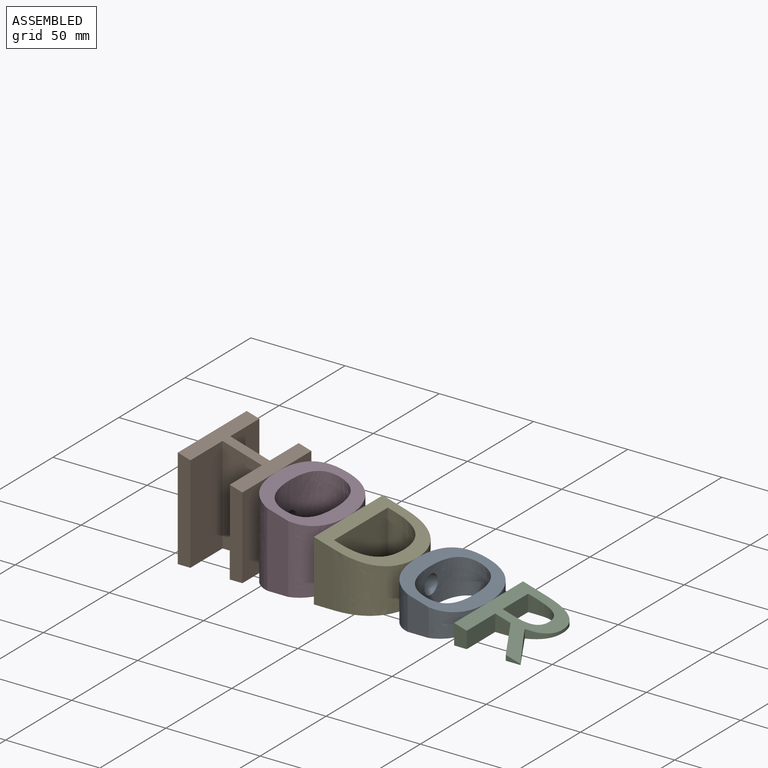
[diagram: assembled view]
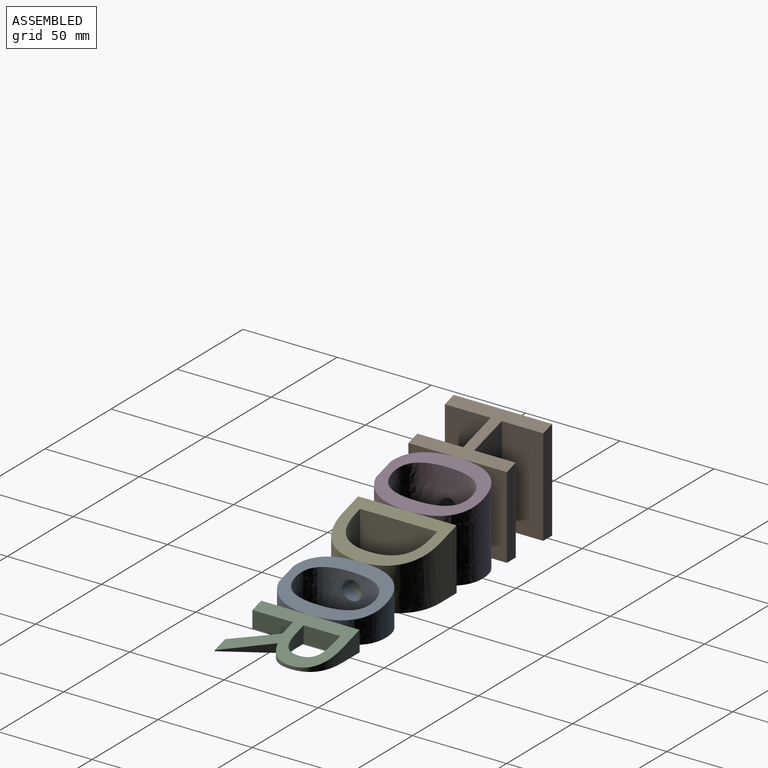
[diagram: assembled view, second angle]
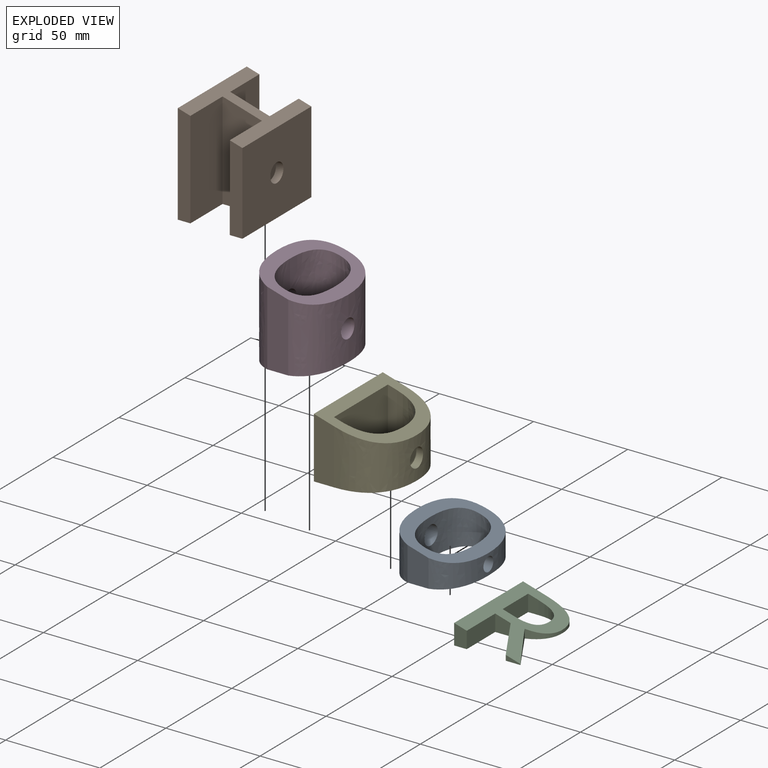
[diagram: exploded view]
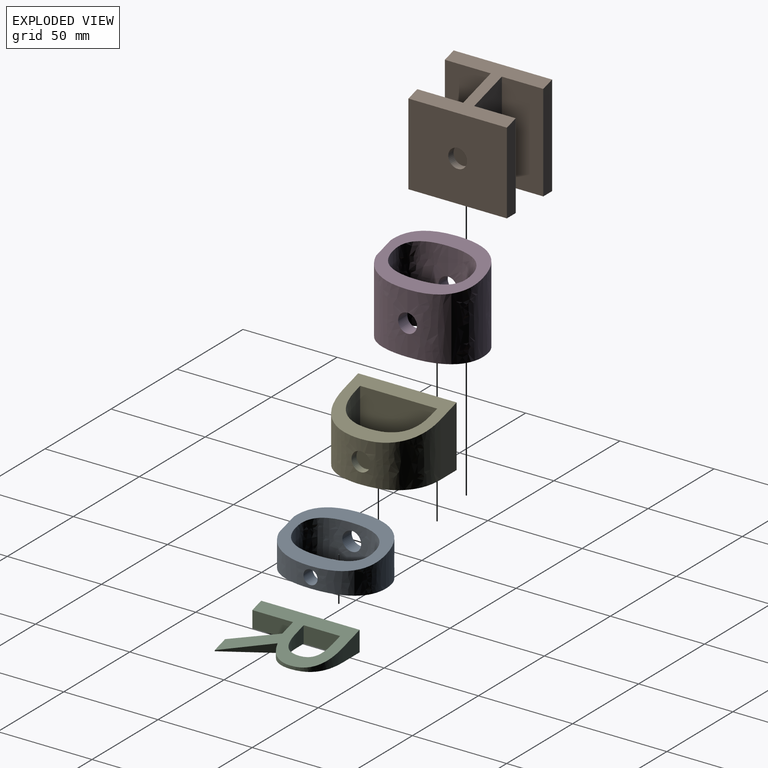
[diagram: exploded view, second angle]
ASSEMBLY  parts=5 mates=4
PART A: 18 faces, bbox 38x53.8x21.9 mm
  f0: extruded ~19.91x12.23mm, area 211.4mm2, adj f1,f5,f13,f15,f17
  f1: extruded ~19.89x12.21mm, area 211.2mm2, adj f0,f6,f13,f15,f17
  f2: extruded ~15.92x13.69mm, area 192mm2, adj f3,f10,f13,f15,f17
  f3: extruded ~15.91x13.68mm, area 191.2mm2, adj f2,f11,f13,f15,f17
  f4: extruded ~26.27x21.86mm, area 623.5mm2, adj f7,f12,f13,f14,f15,f16
  f5: extruded ~14.75x8.63mm, area 145.8mm2, adj f0,f13,f14,f15
  f6: extruded ~16.31x14.02mm, area 230.3mm2, adj f1,f7,f13,f15
  f7: extruded ~26.8x21.86mm, area 713.3mm2, adj f4,f6,f12,f13,f15,f16
  f8: extruded ~21.09x19.82mm, area 478mm2, adj f9,f11,f13,f15,f16
  f9: extruded ~21.01x19.82mm, area 469.4mm2, adj f8,f10,f13,f15,f16
  f10: extruded ~16.31x8.95mm, area 161.2mm2, adj f2,f9,f13,f15
  f11: extruded ~16.33x9.06mm, area 163.6mm2, adj f3,f8,f13,f15
  f12: plane 3.97x0.03mm, normal (0,0,1), area 0.1mm2, adj f4,f7,f13
  f13: plane 53.07x37.95mm, normal (0.28,0,0.96), area 880.3mm2, adj f0,f1,f2,f3,f4,f5,f6,f7
  f14: plane 17.99x11.12mm, normal (0,-1,0), area 181.9mm2, adj f4,f5,f13,f15
  f15: plane 53.79x37.98mm, normal (0,0,-1), area 845mm2, adj f0,f1,f2,f3,f4,f5,f6,f7
  f16: cylinder r=5mm len=10mm, axis (-1,0,0), area 221.1mm2, adj f4,f7,f8,f9
  f17: cylinder r=3.75mm len=7.5mm, axis (1,0,0), area 165.5mm2, adj f0,f1,f2,f3
PART B: 17 faces, bbox 34.3x52.2x53.5 mm
  f0: plane 53.5x6.68mm, normal (0,-1,0), area 350.8mm2, adj f3,f11,f12,f14
  f1: plane 45.45x6.69mm, normal (0,-1,0), area 297.5mm2, adj f4,f10,f12,f14
  f2: plane 51.55x22.01mm, normal (1,0,0), area 1134.7mm2, adj f7,f8,f12,f14
  f3: plane 51.55x24.37mm, normal (1,0,0), area 1256.2mm2, adj f0,f9,f12,f14
  f4: plane 52.25x43.5mm, normal (1,0,0), area 2194.1mm2, adj f1,f5,f13,f14,f15
  f5: plane 45.45x6.69mm, normal (0,1,0), area 297.5mm2, adj f4,f6,f12,f14
  f6: plane 45.45x22.01mm, normal (-1,0,0), area 1000.5mm2, adj f5,f7,f12,f14
  f7: plane 51.55x20.9mm, normal (0,1,0), area 1013.8mm2, adj f2,f6,f12,f14
  f8: plane 53.5x6.68mm, normal (0,1,0), area 350.8mm2, adj f2,f11,f12,f14
  f9: plane 51.55x20.9mm, normal (0,-1,0), area 1013.8mm2, adj f3,f10,f12,f14
  f10: plane 45.45x24.37mm, normal (-1,0,0), area 1107.6mm2, adj f1,f9,f12,f14
  f11: plane 53.5x52.25mm, normal (-1,0,0), area 2795.1mm2, adj f0,f8,f12,f14
  f12: plane 52.25x34.27mm, normal (0.28,0,0.96), area 855.2mm2, adj f0,f1,f2,f3,f5,f6,f7,f8
  f13: plane 52.25x0mm, normal (0,0,1), area 0mm2, adj f4,f12
  f14: plane 52.25x34.27mm, normal (0,0,-1), area 821mm2, adj f0,f1,f2,f3,f4,f5,f6,f7
  f15: cylinder r=5mm len=10mm, axis (1,0,0), area 125.7mm2, adj f4,f16
  f16: plane 10x10mm, normal (1,0,0), area 78.5mm2, adj f15
PART C: 22 faces, bbox 35.2x52.2x10.8 mm
  f0: plane 7.82x2.8mm, normal (0,-1,0), area 13mm2, adj f3,f4,f18,f19
  f1: plane 10.78x6.69mm, normal (0,-1,0), area 65.6mm2, adj f8,f16,f17,f18,f19
  f2: plane 8.83x8.18mm, normal (0,-1,0), area 62.5mm2, adj f3,f16,f18,f19
  f3: plane 21.59x12.51mm, normal (-0.87,-0.5,0), area 115.4mm2, adj f0,f2,f18,f19
  f4: plane 23.41x14.18mm, normal (0.86,0.52,0), area 70.7mm2, adj f0,f5,f18,f19
  f5: extruded ~14.01x10.33mm, area 50.2mm2, adj f4,f6,f18,f19
  f6: extruded ~18.58x14.83mm, area 98.8mm2, adj f5,f7,f18,f19
  f7: plane 12.76x10.78mm, normal (0,1,0), area 113.9mm2, adj f6,f8,f17,f18,f19
  f8: plane 52.25x10.78mm, normal (-1,0,0), area 519mm2, adj f1,f7,f17,f19,f20
  f9: plane 19.34x8.83mm, normal (1,0,0), area 170.8mm2, adj f10,f15,f18,f19
  f10: plane 8.83x5.68mm, normal (0,-1,0), area 45.5mm2, adj f9,f11,f18,f19
  f11: extruded ~9.22x7.18mm, area 55.9mm2, adj f10,f12,f18,f19
  f12: extruded ~7.25x4.49mm, area 31.6mm2, adj f11,f13,f18,f19
  f13: extruded ~7.51x4.5mm, area 32.6mm2, adj f12,f14,f18,f19
  f14: extruded ~9.01x7.13mm, area 54.8mm2, adj f13,f15,f18,f19
  f15: plane 8.83x5.85mm, normal (0,1,0), area 46.7mm2, adj f9,f14,f18,f19
  f16: plane 21.59x8.83mm, normal (1,0,0), area 190.7mm2, adj f1,f2,f18,f19
  f17: plane 52.25x0.03mm, normal (0,0,1), area 1.3mm2, adj f1,f7,f8,f18
  f18: plane 52.25x35.17mm, normal (0.28,0,0.96), area 894.4mm2, adj f0,f1,f2,f3,f4,f5,f6,f7
  f19: plane 52.25x35.2mm, normal (0,0,-1), area 859.9mm2, adj f0,f1,f2,f3,f4,f5,f6,f7
  f20: cylinder r=3.75mm len=7.5mm, axis (-1,0,0), area 80.5mm2, adj f8,f21
  f21: plane 7.5x7.5mm, normal (-1,0,0), area 44.2mm2, adj f20
PART D: 18 faces, bbox 38x53.8x43.5 mm
  f0: extruded ~33.86x19.91mm, area 644.1mm2, adj f1,f8,f13,f15,f17
  f1: extruded ~33.84x19.89mm, area 644.1mm2, adj f0,f9,f13,f15,f17
  f2: extruded ~35.32x15.92mm, area 528.9mm2, adj f3,f10,f13,f15,f17
  f3: extruded ~35.31x15.91mm, area 526.5mm2, adj f2,f11,f13,f15,f17
  f4: extruded ~43.5x26.27mm, area 1306.3mm2, adj f5,f12,f13,f14,f15,f16
  f5: extruded ~43.5x26.8mm, area 1527.9mm2, adj f4,f9,f12,f13,f15,f16
  f6: extruded ~41.45x21.09mm, area 1062.3mm2, adj f7,f11,f13,f15,f16
  f7: extruded ~41.45x21.01mm, area 1062.7mm2, adj f6,f10,f13,f15,f16
  f8: extruded ~36.38x8.63mm, area 381.4mm2, adj f0,f13,f14,f15
  f9: extruded ~37.93x14.02mm, area 583.9mm2, adj f1,f5,f13,f15
  f10: extruded ~37.93x8.95mm, area 395.8mm2, adj f2,f7,f13,f15
  f11: extruded ~37.95x9.06mm, area 401.8mm2, adj f3,f6,f13,f15
  f12: plane 0.82x0mm, normal (0,0,1), area 0mm2, adj f4,f5,f13
  f13: plane 53.07x37.97mm, normal (0.28,0,0.96), area 880.3mm2, adj f0,f1,f2,f3,f4,f5,f6,f7
  f14: plane 39.62x11.12mm, normal (0,-1,0), area 422.4mm2, adj f4,f8,f13,f15
  f15: plane 53.79x37.98mm, normal (0,0,-1), area 845mm2, adj f0,f1,f2,f3,f4,f5,f6,f7
  f16: cylinder r=5mm len=10mm, axis (-1,0,0), area 221.1mm2, adj f4,f5,f6,f7
  f17: cylinder r=5mm len=10mm, axis (1,0,0), area 220.5mm2, adj f0,f1,f2,f3
PART E: 19 faces, bbox 36.2x52.2x32.4 mm
  f0: extruded ~23.77x19.76mm, area 439.4mm2, adj f1,f3,f13,f14,f17
  f1: extruded ~23.71x18.87mm, area 418.5mm2, adj f0,f4,f13,f14,f17
  f2: plane 32.42x10.76mm, normal (0,-1,0), area 331.9mm2, adj f3,f11,f12,f13,f14
  f3: extruded ~29.28x18.86mm, area 544.8mm2, adj f0,f2,f13,f14
  f4: extruded ~28.85x17.63mm, area 508.1mm2, adj f1,f5,f13,f14
  f5: plane 32.42x12.22mm, normal (0,1,0), area 374.5mm2, adj f4,f11,f12,f13,f14
  f6: plane 30.47x4.83mm, normal (0,-1,0), area 143.6mm2, adj f7,f10,f13,f14
  f7: extruded ~29.06x20.16mm, area 785.5mm2, adj f6,f8,f13,f14
  f8: extruded ~29.47x20.69mm, area 830.3mm2, adj f7,f9,f13,f14
  f9: plane 30.47x3.43mm, normal (0,1,0), area 102.8mm2, adj f8,f10,f13,f14
  f10: plane 40.85x30.47mm, normal (1,0,0), area 1244.5mm2, adj f6,f9,f13,f14
  f11: plane 52.25x32.42mm, normal (-1,0,0), area 1615mm2, adj f2,f5,f12,f14,f15
  f12: plane 52.25x0.01mm, normal (0,0,1), area 0.4mm2, adj f2,f5,f11,f13
  f13: plane 52.25x36.15mm, normal (0.28,0,0.96), area 904.3mm2, adj f0,f1,f2,f3,f4,f5,f6,f7
  f14: plane 52.25x36.16mm, normal (0,0,-1), area 868.5mm2, adj f0,f1,f2,f3,f4,f5,f6,f7
  f15: cylinder r=5mm len=10mm, axis (-1,0,0), area 125.7mm2, adj f11,f16
  f16: plane 10x10mm, normal (-1,0,0), area 78.5mm2, adj f15
  f17: cylinder r=5mm len=10mm, axis (1,0,0), area 121.3mm2, adj f0,f1,f18
  f18: plane 10x10mm, normal (1,0,0), area 78.5mm2, adj f17
PLACE A t=(-38.53,5.18,-29.51)mm
PLACE B t=(-16.99,4.89,-29.51)mm
PLACE C t=(-48.12,5.25,-29.51)mm
PLACE D t=(-24.82,4.75,-29.51)mm
PLACE E t=(-32.59,4.82,-29.51)mm
MATE fastened D.f15 <-> E.f14  axis (0,0,-1) through (-44.86,30.94,-13.01)mm
MATE fastened A.f15 <-> E.f14  axis (0,0,-1) through (-8.7,31.44,-13.01)mm
MATE fastened B.f14 <-> D.f15  axis (0,0,-1) through (-82.84,31.01,-13.01)mm
MATE fastened C.f19 <-> A.f15  axis (0,0,-1) through (29.27,31.37,-13.01)mm
